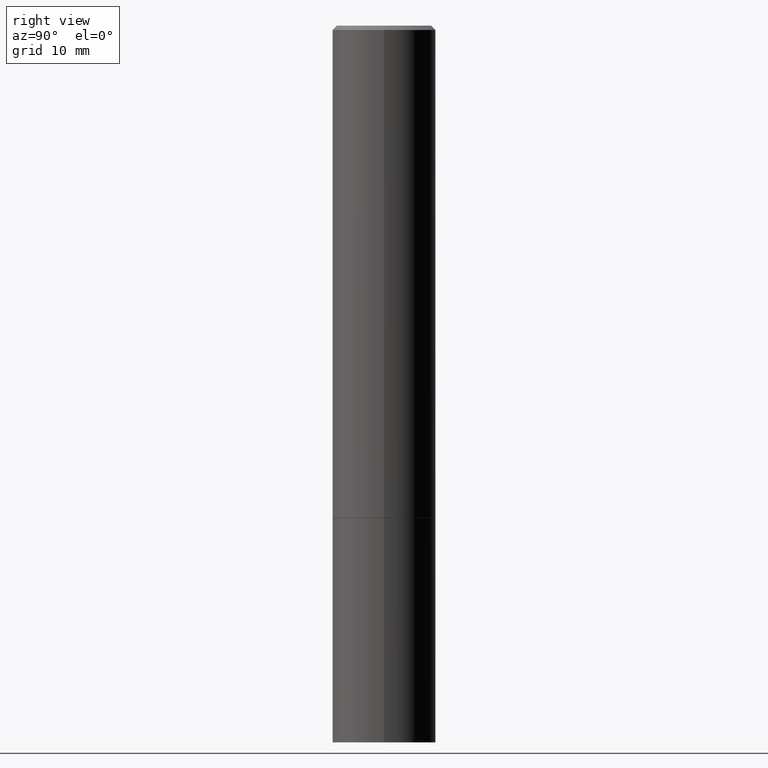
[diagram: clean part render]
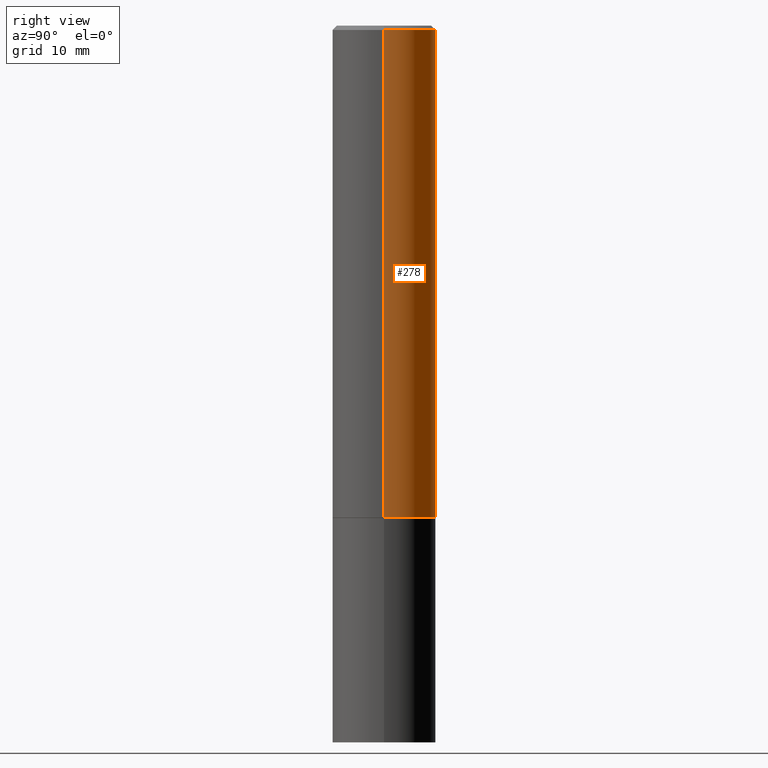
[diagram: same view with one face highlighted and labeled with its STEP entity id]
A machine part, right view. The second image highlights one B-rep face of the part: STEP entity #278.
In plain terms, the highlighted cylindrical surface (partial cylindrical patch) has radius 5.9995 mm, axis along (-0, 0, 1).
Its self-contained STEP definition (entity closure, byte-faithful):
#7 = DIRECTION ( 'NONE',  ( 1.000000000000000000, -6.982962677686266711E-15, 4.876176775795935793E-29 ) ) ;
#15 = EDGE_CURVE ( 'NONE', #97, #354, #328, .T. ) ;
#36 = VERTEX_POINT ( 'NONE', #297 ) ;
#38 = DIRECTION ( 'NONE',  ( -2.445468806185136597E-29, 3.491481338843145583E-15, 1.000000000000000000 ) ) ;
#42 = DIRECTION ( 'NONE',  ( -2.445468806185136877E-29, 3.491481338843145188E-15, 1.000000000000000000 ) ) ;
#58 = CARTESIAN_POINT ( 'NONE',  ( 0.2361999999999999933, -9.481117575628557435E-15, -2.243100000000000094 ) ) ;
#61 = AXIS2_PLACEMENT_3D ( 'NONE', #70, #220, #244 ) ;
#64 = ORIENTED_EDGE ( 'NONE', *, *, #324, .T. ) ;
#70 = CARTESIAN_POINT ( 'NONE',  ( 5.485431079153880270E-29, -7.831741791159060910E-15, -2.243100000000000094 ) ) ;
#81 = CARTESIAN_POINT ( 'NONE',  ( -0.2361999999999997157, 1.579546157692631255E-15, -0.02000000000000004552 ) ) ;
#94 = VECTOR ( 'NONE', #156, 39.37007874015748143 ) ;
#97 = VERTEX_POINT ( 'NONE', #103 ) ;
#102 = LINE ( 'NONE', #246, #94 ) ;
#103 = CARTESIAN_POINT ( 'NONE',  ( 0.2361999999999997157, -1.690279253850496996E-15, -0.02000000000000004552 ) ) ;
#118 = ORIENTED_EDGE ( 'NONE', *, *, #307, .F. ) ;
#138 = CARTESIAN_POINT ( 'NONE',  ( 0.000000000000000000, 0.000000000000000000, 0.000000000000000000 ) ) ;
#139 = LINE ( 'NONE', #222, #270 ) ;
#149 = DIRECTION ( 'NONE',  ( 1.000000000000000000, -6.982962677686266711E-15, 0.000000000000000000 ) ) ;
#156 = DIRECTION ( 'NONE',  ( -2.445468806185136877E-29, 3.491481338843145188E-15, 1.000000000000000000 ) ) ;
#159 = AXIS2_PLACEMENT_3D ( 'NONE', #138, #257, #7 ) ;
#164 = AXIS2_PLACEMENT_3D ( 'NONE', #232, #38, #149 ) ;
#181 = EDGE_CURVE ( 'NONE', #228, #36, #218, .T. ) ;
#218 = CIRCLE ( 'NONE', #61, 0.2361999999999999933 ) ;
#220 = DIRECTION ( 'NONE',  ( -2.445468806185136597E-29, 3.491481338843145583E-15, 1.000000000000000000 ) ) ;
#222 = CARTESIAN_POINT ( 'NONE',  ( 0.2361999999999998545, -1.649375784469495145E-15, 1.151752954442999387E-29 ) ) ;
#226 = FACE_OUTER_BOUND ( 'NONE', #325, .T. ) ;
#228 = VERTEX_POINT ( 'NONE', #58 ) ;
#232 = CARTESIAN_POINT ( 'NONE',  ( 4.890937612370284544E-31, -6.982962677686307633E-17, -0.02000000000000004552 ) ) ;
#244 = DIRECTION ( 'NONE',  ( 1.000000000000000000, -6.982962677686269077E-15, 0.000000000000000000 ) ) ;
#246 = CARTESIAN_POINT ( 'NONE',  ( -0.2361999999999998545, 1.678301941865355605E-15, -1.161852468318208056E-29 ) ) ;
#257 = DIRECTION ( 'NONE',  ( -2.445468806185136597E-29, 3.491481338843145583E-15, 1.000000000000000000 ) ) ;
#265 = ORIENTED_EDGE ( 'NONE', *, *, #181, .T. ) ;
#268 = ORIENTED_EDGE ( 'NONE', *, *, #15, .F. ) ;
#270 = VECTOR ( 'NONE', #42, 39.37007874015748143 ) ;
#278 = ADVANCED_FACE ( 'NONE', ( #226 ), #282, .T. ) ;
#282 = CYLINDRICAL_SURFACE ( 'NONE', #159, 0.2361999999999998545 ) ;
#297 = CARTESIAN_POINT ( 'NONE',  ( -0.2362000000000000210, -2.272483767102602555E-15, -2.243100000000000094 ) ) ;
#307 = EDGE_CURVE ( 'NONE', #228, #97, #139, .T. ) ;
#324 = EDGE_CURVE ( 'NONE', #36, #354, #102, .T. ) ;
#325 = EDGE_LOOP ( 'NONE', ( #265, #64, #268, #118 ) ) ;
#328 = CIRCLE ( 'NONE', #164, 0.2361999999999997157 ) ;
#354 = VERTEX_POINT ( 'NONE', #81 ) ;